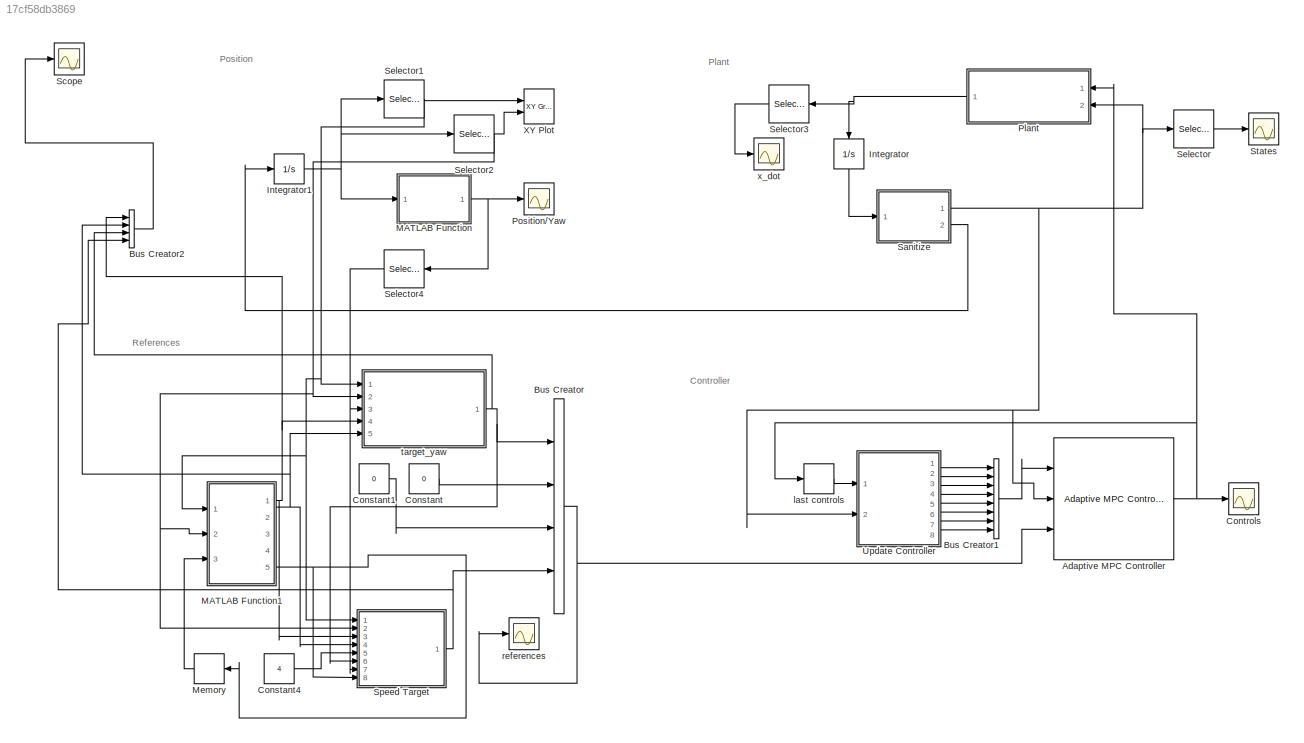
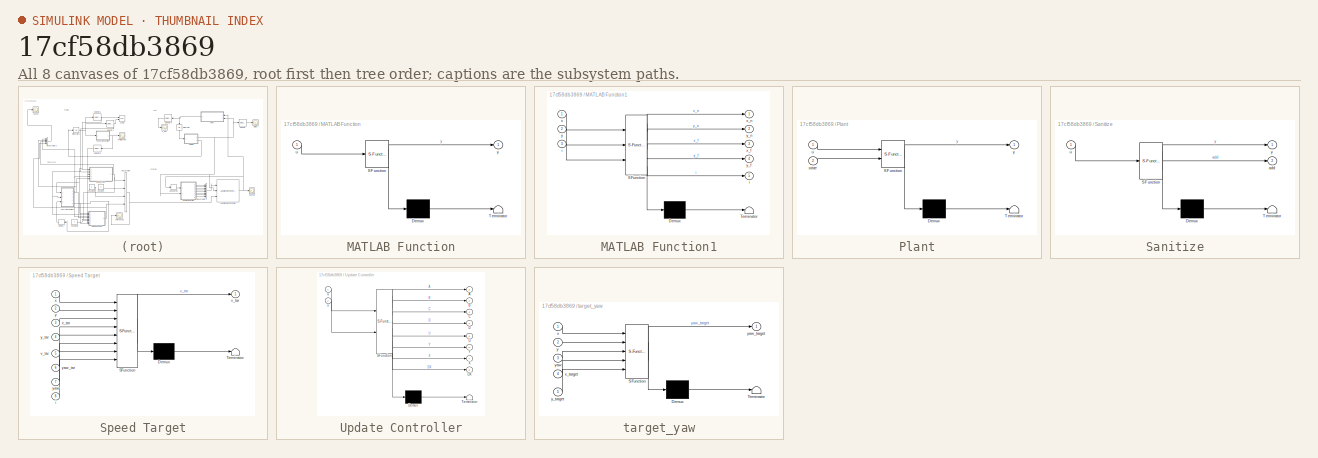
[diagram: thumbnail index - all 8 canvases of the model, root first then tree order]
MODEL slx_17cf58db3869
KIND model
CONFIG AbsTol = auto
CONFIG EnableMultiTasking = off
CONFIG FixedStep = 0.01
CONFIG MaxStep = auto
CONFIG MinStep = auto
CONFIG RelTol = 1e-3
CONFIG SampleTimeConstraint = Unconstrained
CONFIG Solver = ode1
CONFIG SolverName = ode1
CONFIG StartTime = 0.0
CONFIG StopTime = 45
BLOCK [Reference] Adaptive MPC Controller  REF=mpclib/Adaptive MPC Controller  (lib defined in mdl_ae329e0e0455)
  Ports = [3, 1]
  SCDEnableBlockLinearizationSpecification = on
  SourceBlock = mpclib/Adaptive MPC Controller
  SourceProductBaseCode = Missing
  SourceProductName = MATLAB Runtime - Model Predictive Control Toolbox Addin
  SourceType = Adaptive MPC
BLOCK [BusCreator] Bus Creator
  DisplayOption = bar
  InheritFromInputs = on
  Inputs = 4
  Ports = [4, 1]
BLOCK [BusCreator] Bus Creator1
  DisplayOption = bar
  InheritFromInputs = on
  Inputs = 8
  Ports = [8, 1]
BLOCK [BusCreator] Bus Creator2
  DisplayOption = bar
  InheritFromInputs = on
  Inputs = 4
  Ports = [4, 1]
BLOCK [Constant] Constant
  Value = 0
BLOCK [Constant] Constant1
  Value = 0
BLOCK [Constant] Constant4
  Value = 4
BLOCK [Scope] Controls
  Floating = off
  NumInputPorts = 1
  Ports = [1]
  ScopeSpecificationString = Simulink.scopes.TimeScopeBlockCfg('CurrentConfiguration', extmgr.ConfigurationSet(extmgr.Configuration('Core','General UI',true),extmgr.Configuration('Core','Source UI',true),extmgr.Configuration('Sources','WiredSimulink',true,'DataLogging',true,'DataLoggingVariableName','controls','DataLoggingSaveFormat','Array'),extmgr.Configuration('Visuals','Time Domain',true,'SerializedDisplays',{struct('MinY...<+1680ch>
BLOCK [Integrator] Integrator
  InitialCondition = [0;0;0;3]
  Ports = [1, 1]
BLOCK [Integrator] Integrator1
  Ports = [1, 1]
BLOCK [SubSystem] MATLAB Function
  ErrorFcn = Stateflow.Translate.translate
  PermitHierarchicalResolution = ExplicitOnly
  Ports = [1, 1]
  RequestExecContextInheritance = off
  SFBlockType = MATLAB Function
  TreatAsAtomicUnit = on
BLOCK [Demux] MATLAB Function/ Demux 
  Outputs = 1
  Ports = [1, 1]
BLOCK [S-Function] MATLAB Function/ SFunction 
  EnableBusSupport = on
  FunctionName = sf_sfun
  PortCounts = [1 2]
  Ports = [1, 2]
  SFcnIsStateOwnerBlock = off
  SFunctionDeploymentMode = off
  Tag = Stateflow S-Function model_gps_unconstr_route 5
BLOCK [Terminator] MATLAB Function/ Terminator 
BLOCK [Inport] MATLAB Function/u
  IconDisplay = Port number
BLOCK [Outport] MATLAB Function/y
  IconDisplay = Port number
BLOCK [SubSystem] MATLAB Function1
  ErrorFcn = Stateflow.Translate.translate
  PermitHierarchicalResolution = ExplicitOnly
  Ports = [3, 5]
  RequestExecContextInheritance = off
  SFBlockType = MATLAB Function
  TreatAsAtomicUnit = on
BLOCK [Demux] MATLAB Function1/ Demux 
  Outputs = 1
  Ports = [1, 1]
BLOCK [S-Function] MATLAB Function1/ SFunction 
  EnableBusSupport = on
  FunctionName = sf_sfun
  PortCounts = [3 6]
  Ports = [3, 6]
  SFcnIsStateOwnerBlock = off
  SFunctionDeploymentMode = off
  Tag = Stateflow S-Function model_gps_unconstr_route 7
BLOCK [Terminator] MATLAB Function1/ Terminator 
BLOCK [Outport] MATLAB Function1/i
  IconDisplay = Port number
  Port = 5
BLOCK [Inport] MATLAB Function1/i 
  IconDisplay = Port number
  Port = 3
BLOCK [Inport] MATLAB Function1/x
  IconDisplay = Port number
BLOCK [Outport] MATLAB Function1/x_f
  IconDisplay = Port number
  Port = 3
BLOCK [Outport] MATLAB Function1/x_n
  IconDisplay = Port number
BLOCK [Inport] MATLAB Function1/y
  IconDisplay = Port number
  Port = 2
BLOCK [Outport] MATLAB Function1/y_f
  IconDisplay = Port number
  Port = 4
BLOCK [Outport] MATLAB Function1/y_n
  IconDisplay = Port number
  Port = 2
BLOCK [Memory] Memory
BLOCK [SubSystem] Plant
  ErrorFcn = Stateflow.Translate.translate
  PermitHierarchicalResolution = ExplicitOnly
  Ports = [2, 1]
  RequestExecContextInheritance = off
  SFBlockType = MATLAB Function
  TreatAsAtomicUnit = on
BLOCK [Demux] Plant/ Demux 
  Outputs = 1
  Ports = [1, 1]
BLOCK [S-Function] Plant/ SFunction 
  EnableBusSupport = on
  FunctionName = sf_sfun
  PortCounts = [2 2]
  Ports = [2, 2]
  SFcnIsStateOwnerBlock = off
  SFunctionDeploymentMode = off
  Tag = Stateflow S-Function model_gps_unconstr_route 2
BLOCK [Terminator] Plant/ Terminator 
BLOCK [Inport] Plant/state
  IconDisplay = Port number
  Port = 2
BLOCK [Inport] Plant/u
  IconDisplay = Port number
BLOCK [Outport] Plant/y
  IconDisplay = Port number
BLOCK [Scope] Position//Yaw
  Floating = off
  NumInputPorts = 1
  Ports = [1]
  ScopeSpecificationString = Simulink.scopes.TimeScopeBlockCfg('CurrentConfiguration', extmgr.ConfigurationSet(extmgr.Configuration('Core','General UI',true),extmgr.Configuration('Core','Source UI',true),extmgr.Configuration('Sources','WiredSimulink',true,'DataLoggingVariableName','pos_yaw','DataLogging',true,'DataLoggingSaveFormat','Array'),extmgr.Configuration('Visuals','Time Domain',true,'SerializedDisplays',{struct('MinYL...<+1890ch>
BLOCK [SubSystem] Sanitize
  ErrorFcn = Stateflow.Translate.translate
  PermitHierarchicalResolution = ExplicitOnly
  Ports = [1, 2]
  RequestExecContextInheritance = off
  SFBlockType = MATLAB Function
  TreatAsAtomicUnit = on
BLOCK [Demux] Sanitize/ Demux 
  Outputs = 1
  Ports = [1, 1]
BLOCK [S-Function] Sanitize/ SFunction 
  EnableBusSupport = on
  FunctionName = sf_sfun
  PortCounts = [1 3]
  Ports = [1, 3]
  SFcnIsStateOwnerBlock = off
  SFunctionDeploymentMode = off
  Tag = Stateflow S-Function model_gps_unconstr_route 1
BLOCK [Terminator] Sanitize/ Terminator 
BLOCK [Outport] Sanitize/add
  IconDisplay = Port number
  Port = 2
BLOCK [Inport] Sanitize/u
  IconDisplay = Port number
BLOCK [Outport] Sanitize/y
  IconDisplay = Port number
BLOCK [Scope] Scope
  Floating = off
  NumInputPorts = 1
  Ports = [1]
  ScopeSpecificationString = Simulink.scopes.TimeScopeBlockCfg('CurrentConfiguration', extmgr.ConfigurationSet(extmgr.Configuration('Core','General UI',true),extmgr.Configuration('Core','Source UI',true),extmgr.Configuration('Sources','WiredSimulink',true,'DataLoggingVariableName','refforthesis','DataLogging',true,'DataLoggingSaveFormat','Array'),extmgr.Configuration('Visuals','Time Domain',true,'SerializedDisplays',{struct('...<+1475ch>
BLOCK [Selector] Selector
  IndexOptions = Index vector (dialog)
  Indices = [1 2 3 4]
  InputPortWidth = 4
  OutputSizes = 1
  Ports = [1, 1]
BLOCK [Selector] Selector1
  IndexOptions = Index vector (dialog)
  Indices = [1]
  InputPortWidth = 3
  OutputSizes = 1
  Ports = [1, 1]
BLOCK [Selector] Selector2
  IndexOptions = Index vector (dialog)
  Indices = [2]
  InputPortWidth = 3
  OutputSizes = 1
  Ports = [1, 1]
BLOCK [Selector] Selector3
  IndexOptions = Index vector (dialog)
  Indices = [1 2 3 4]
  InputPortWidth = 4
  OutputSizes = 1
  Ports = [1, 1]
BLOCK [Selector] Selector4
  IndexOptions = Index vector (dialog)
  Indices = [3]
  InputPortWidth = 3
  OutputSizes = 1
  Ports = [1, 1]
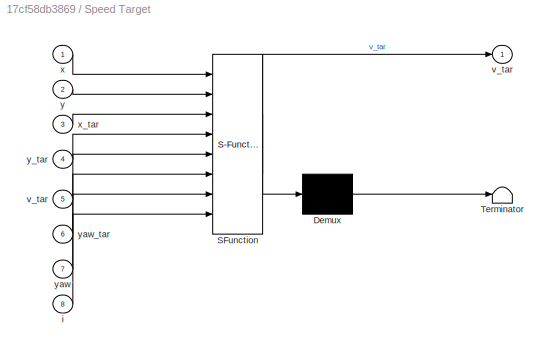
BLOCK [SubSystem] Speed Target
  ErrorFcn = Stateflow.Translate.translate
  PermitHierarchicalResolution = ExplicitOnly
  Ports = [8, 1]
  RequestExecContextInheritance = off
  SFBlockType = MATLAB Function
  TreatAsAtomicUnit = on
BLOCK [Demux] Speed Target/ Demux 
  Outputs = 1
  Ports = [1, 1]
BLOCK [S-Function] Speed Target/ SFunction 
  EnableBusSupport = on
  FunctionName = sf_sfun
  PortCounts = [8 2]
  Ports = [8, 2]
  SFcnIsStateOwnerBlock = off
  SFunctionDeploymentMode = off
  Tag = Stateflow S-Function model_gps_unconstr_route 6
BLOCK [Terminator] Speed Target/ Terminator 
BLOCK [Inport] Speed Target/i
  IconDisplay = Port number
  Port = 8
BLOCK [Outport] Speed Target/v_tar
  IconDisplay = Port number
BLOCK [Inport] Speed Target/v_tar 
  IconDisplay = Port number
  Port = 5
BLOCK [Inport] Speed Target/x
  IconDisplay = Port number
BLOCK [Inport] Speed Target/x_tar
  IconDisplay = Port number
  Port = 3
BLOCK [Inport] Speed Target/y
  IconDisplay = Port number
  Port = 2
BLOCK [Inport] Speed Target/y_tar
  IconDisplay = Port number
  Port = 4
BLOCK [Inport] Speed Target/yaw
  IconDisplay = Port number
  Port = 7
BLOCK [Inport] Speed Target/yaw_tar
  IconDisplay = Port number
  Port = 6
BLOCK [Scope] States
  Floating = off
  NumInputPorts = 1
  Ports = [1]
  ScopeSpecificationString = Simulink.scopes.TimeScopeBlockCfg('CurrentConfiguration', extmgr.ConfigurationSet(extmgr.Configuration('Core','General UI',true),extmgr.Configuration('Core','Source UI',true),extmgr.Configuration('Sources','WiredSimulink',true,'DataLoggingVariableName','states','DataLogging',true,'DataLoggingSaveFormat','Array'),extmgr.Configuration('Visuals','Time Domain',true,'SerializedDisplays',{struct('MinYLi...<+1689ch>
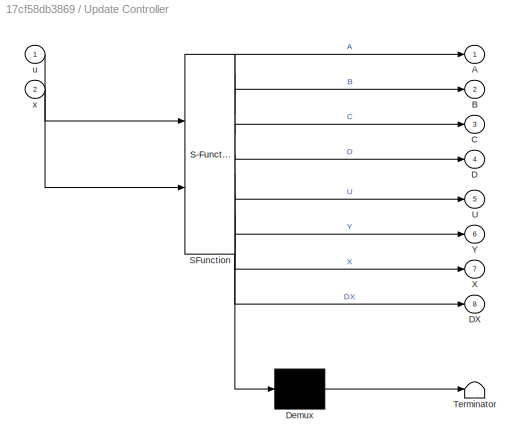
BLOCK [SubSystem] Update Controller
  ErrorFcn = Stateflow.Translate.translate
  PermitHierarchicalResolution = ExplicitOnly
  Ports = [2, 8]
  RequestExecContextInheritance = off
  SFBlockType = MATLAB Function
  TreatAsAtomicUnit = on
BLOCK [Demux] Update Controller/ Demux 
  Outputs = 1
  Ports = [1, 1]
BLOCK [S-Function] Update Controller/ SFunction 
  EnableBusSupport = on
  FunctionName = sf_sfun
  PortCounts = [2 9]
  Ports = [2, 9]
  SFcnIsStateOwnerBlock = off
  SFunctionDeploymentMode = off
  Tag = Stateflow S-Function model_gps_unconstr_route 4
BLOCK [Terminator] Update Controller/ Terminator 
BLOCK [Outport] Update Controller/A
  IconDisplay = Port number
BLOCK [Outport] Update Controller/B
  IconDisplay = Port number
  Port = 2
BLOCK [Outport] Update Controller/C
  IconDisplay = Port number
  Port = 3
BLOCK [Outport] Update Controller/D
  IconDisplay = Port number
  Port = 4
BLOCK [Outport] Update Controller/DX
  IconDisplay = Port number
  Port = 8
BLOCK [Outport] Update Controller/U
  IconDisplay = Port number
  Port = 5
BLOCK [Outport] Update Controller/X
  IconDisplay = Port number
  Port = 7
BLOCK [Outport] Update Controller/Y
  IconDisplay = Port number
  Port = 6
BLOCK [Inport] Update Controller/u
  IconDisplay = Port number
BLOCK [Inport] Update Controller/x
  IconDisplay = Port number
  Port = 2
BLOCK [Reference] XY Plot  REF=simulink/Sinks/XY Graph
  Ports = [2]
  SourceBlock = simulink/Sinks/XY Graph
  SourceProductBaseCode = SL
  SourceProductName = Simulink
  SourceType = XY scope.
BLOCK [Memory] last controls
  InitialCondition = [0; 0; 0]
BLOCK [Scope] references
  Floating = off
  NumInputPorts = 1
  Ports = [1]
  ScopeSpecificationString = Simulink.scopes.TimeScopeBlockCfg('CurrentConfiguration', extmgr.ConfigurationSet(extmgr.Configuration('Core','General UI',true),extmgr.Configuration('Core','Source UI',true),extmgr.Configuration('Sources','WiredSimulink',true,'DataLoggingVariableName','ScopeData3'),extmgr.Configuration('Visuals','Time Domain',true,'SerializedDisplays',{struct('MinYLimReal','-0.64105','MaxYLimReal','5.76943','YLab...<+1597ch>
BLOCK [SubSystem] target_yaw
  ErrorFcn = Stateflow.Translate.translate
  PermitHierarchicalResolution = ExplicitOnly
  Ports = [5, 1]
  RequestExecContextInheritance = off
  SFBlockType = MATLAB Function
  TreatAsAtomicUnit = on
BLOCK [Demux] target_yaw/ Demux 
  Outputs = 1
  Ports = [1, 1]
BLOCK [S-Function] target_yaw/ SFunction 
  EnableBusSupport = on
  FunctionName = sf_sfun
  PortCounts = [5 2]
  Ports = [5, 2]
  SFcnIsStateOwnerBlock = off
  SFunctionDeploymentMode = off
  Tag = Stateflow S-Function model_gps_unconstr_route 3
BLOCK [Terminator] target_yaw/ Terminator 
BLOCK [Inport] target_yaw/x
  IconDisplay = Port number
BLOCK [Inport] target_yaw/x_target
  IconDisplay = Port number
  Port = 4
BLOCK [Inport] target_yaw/y
  IconDisplay = Port number
  Port = 2
BLOCK [Inport] target_yaw/y_target
  IconDisplay = Port number
  Port = 5
BLOCK [Inport] target_yaw/yaw
  IconDisplay = Port number
  Port = 3
BLOCK [Outport] target_yaw/yaw_target
  IconDisplay = Port number
BLOCK [Scope] x_dot
  Floating = off
  NumInputPorts = 1
  Ports = [1]
  ScopeSpecificationString = Simulink.scopes.TimeScopeBlockCfg('CurrentConfiguration', extmgr.ConfigurationSet(extmgr.Configuration('Core','General UI',true),extmgr.Configuration('Core','Source UI',true),extmgr.Configuration('Sources','WiredSimulink',true,'DataLoggingVariableName','ScopeData4'),extmgr.Configuration('Visuals','Time Domain',true,'SerializedDisplays',{struct('MinYLimReal','-7.5548','MaxYLimReal','4.36812','YLabe...<+1607ch>
ANNOTATION (root): Controller
ANNOTATION (root): Plant
ANNOTATION (root): Position
ANNOTATION (root): References
NET Adaptive MPC Controller:1 -> Controls:1, Plant:1, last controls:1
LINE Bus Creator1:1 -> Adaptive MPC Controller:1
LINE Bus Creator2:1 -> Scope:1
NET Bus Creator:1 -> Adaptive MPC Controller:3, references:1
LINE Constant1:1 -> Bus Creator:3
LINE Constant4:1 -> Speed Target:5
LINE Constant:1 -> Bus Creator:2
NET Integrator1:1 -> MATLAB Function:1, Selector1:1, Selector2:1
LINE Integrator:1 -> Sanitize:1
NET MATLAB Function1:1 -> Bus Creator2:1, Speed Target:3, target_yaw:4
NET MATLAB Function1:2 -> Bus Creator2:2, Speed Target:4, target_yaw:5
NET MATLAB Function1:5 -> Memory:1, Speed Target:8
NET MATLAB Function:1 -> Position//Yaw:1, Selector4:1
LINE Memory:1 -> MATLAB Function1:3
NET Plant:1 -> Integrator:1, Selector3:1
NET Sanitize:1 -> Adaptive MPC Controller:2, Plant:2, Selector:1, Update Controller:2
LINE Sanitize:2 -> Integrator1:1
NET Selector1:1 -> MATLAB Function1:1, Speed Target:1, XY Plot:1, target_yaw:1
NET Selector2:1 -> MATLAB Function1:2, Speed Target:2, XY Plot:2, target_yaw:2
LINE Selector3:1 -> x_dot:1
NET Selector4:1 -> Speed Target:7, target_yaw:3
LINE Selector:1 -> States:1
NET Speed Target:1 -> Bus Creator2:4, Bus Creator:4
LINE Update Controller:1 -> Bus Creator1:1
LINE Update Controller:2 -> Bus Creator1:2
LINE Update Controller:3 -> Bus Creator1:3
LINE Update Controller:4 -> Bus Creator1:4
LINE Update Controller:5 -> Bus Creator1:5
LINE Update Controller:6 -> Bus Creator1:6
LINE Update Controller:7 -> Bus Creator1:7
LINE Update Controller:8 -> Bus Creator1:8
LINE last controls:1 -> Update Controller:1
NET target_yaw:1 -> Bus Creator2:3, Bus Creator:1, Speed Target:6
note: NET lines group one-source signal fan-out (src -> all destinations, sorted); 1:1 wires keep LINE
CHART Sanitize states=1 transitions=1
  STATE_LABEL 'eML_blk_kernel()'
  STATE_LABEL 'SCRIPT:\nfunction [y, add]= fcn(u)\n\ny = u;\n\nVx = u(4);\nadd = [cos(y(1))*Vx; sin(y(1))*Vx; y(2)];\n\n\n'
CHART Plant states=1 transitions=1
  STATE_LABEL 'eML_blk_kernel()'
  STATE_LABEL 'SCRIPT:\nfunction y = fcn(u, state)\n\n% Parameters definition\nm = 22;     % (kg)   ETROPOLIS Neo 29er 50W 36V 12Ah\nlf = 1.10;  % (m) Distance mass center/front wheel\nlr = 0.70;  % (m) Distance mass center/rear wheel\ncf = 900;   % (N/rad) lateral static stiffness\ncr = 1370;  % (N/rad) lateral static stiffness\niz = 1/12 * (m) * (lr+lf)^2;  % (kgm^2) moment of inertia of bicycle --> 1/12 m l^2 = 1/12 *...<+332ch>'
CHART target_yaw states=1 transitions=1
  STATE_LABEL 'eML_blk_kernel()'
  STATE_LABEL 'SCRIPT:\nfunction yaw_target = fcn(x, y, yaw, x_target, y_target)\n\n% Calculate target yaw\nyaw_target = atan2(y_target-y, x_target-x);\n\n% Adjust so we actually take shortest doff\nyaw_diff = abs(yaw - yaw_target);\n\nif yaw_diff > pi\n    if yaw_target < 0 && yaw > 0\n        yaw_target = yaw_target + 2*pi;\n    end\n    if yaw_target > 0 && yaw < 0\n        yaw_target = yaw_target - 2*pi;\n    end    \nend\n\n'
CHART Update Controller states=1 transitions=1
  STATE_LABEL 'eML_blk_kernel()'
  STATE_LABEL 'SCRIPT:\nfunction [A,B,C,D,U,Y,X,DX] = fcn(u,x)\n\nVx = x(4);\n\n% Parameters definition\nm = 22;     % (kg)   ETROPOLIS Neo 29er 50W 36V 12Ah\nlf = 1.10;  % (m) Distance mass center/front wheel\nlr = 0.70;  % (m) Distance mass center/rear wheel\ncf = 900;   % (N/rad) lateral static stiffness\ncr = 1370;  % (N/rad) lateral static stiffness\niz = 1/12 * (m) * (lr+lf)^2;  % (kgm^2) moment of inertia of bicycle...<+634ch>'
CHART MATLAB Function states=1 transitions=1
  STATE_LABEL 'eML_blk_kernel()'
  STATE_LABEL 'SCRIPT:\nfunction y = fcn(u)\n\nyaw_off = u(3)-pi;\nu(3) = mod(abs(yaw_off), 2*pi) * sign(yaw_off) + pi;\n\ny = u;\n'
CHART Speed Target states=1 transitions=1
  STATE_LABEL 'eML_blk_kernel()'
  STATE_LABEL 'SCRIPT:\nfunction v_tar = fcn(x, y, x_tar, y_tar, v_tar, yaw_tar, yaw, i)\n\n% Rearange data\nposition = [x, y];\nposition_target = [x_tar, y_tar];\n\nfact = 3;\nif i==6\n    fact = 2;\nend\n\n% Calculate delta position\ndelta_position = position - position_target;\ndistance_speed = norm(delta_position)/fact;\nyaw_speed = (v_tar-3*abs(yaw_tar-yaw))+1.5;\ncurrent_approp_speed = min(distance_speed, yaw_speed);\n\nv_t...<+47ch>'
CHART MATLAB Function1 states=1 transitions=1
  STATE_LABEL 'eML_blk_kernel()'
  STATE_LABEL 'SCRIPT:\nfunction [x_n, y_n, x_f, y_f, i] = fcn(x, y, i)\n\nx_n = 0;\ny_n = 0;\n\nif i == 0\n    x_n = 10;\n    y_n = 0;\nend\n\nif i == 1\n    x_n = 10;\n    y_n = 20;\nend\n\nif i == 2\n    x_n = 0;\n    y_n = 30;\nend\n\nif i == 3\n    x_n = -5;\n    y_n = 20;\nend\n\nif i == 4\n    x_n = 0;\n    y_n = 10;\nend\n\nif i == 5\n    x_n = 0;\n    y_n = 10;\nend\n\nx_f = 0;\ny_f = 0;\n\ndst = sqrt((x-x_n)^2 + (y-y_n)^2);\nif dst<2\n    i =...<+9ch>'
